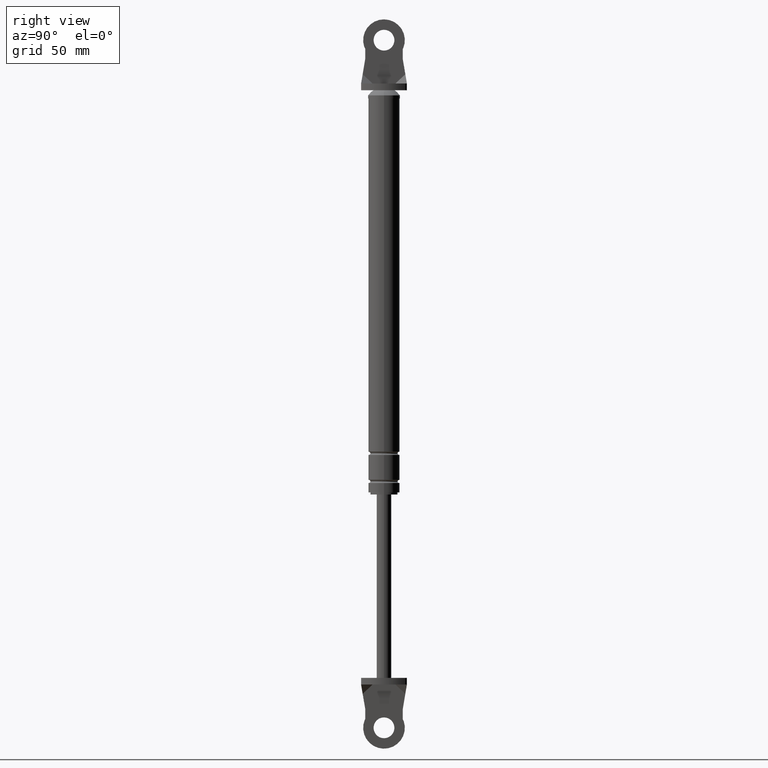
[diagram: clean part render]
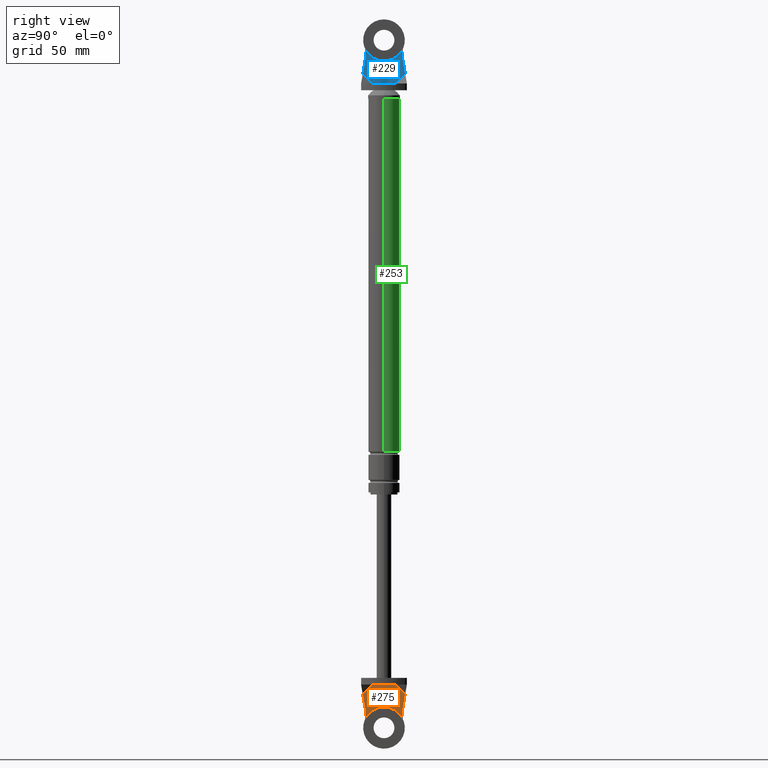
[diagram: same view with three faces highlighted in distinct colors, each labeled with its STEP entity id]
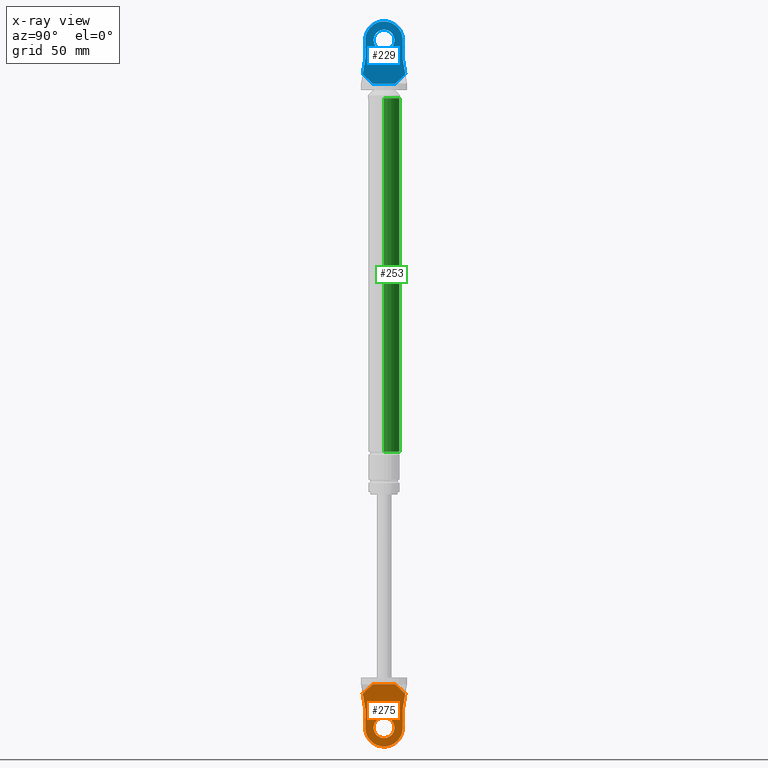
[diagram: x-ray of the same camera — body ghosted, the three highlighted faces saturated]
A machine part, right view with three faces highlighted in distinct colors.
The next image is the same camera in x-ray (body ghosted, the three faces saturated) — at least one of them is partly hidden behind the body in this view.
Their STEP definitions:

[orange] entity #275 — the highlighted planar face has unit normal (1, 0, 0).
#275=ADVANCED_FACE('',(#1008,#1009),#1007,.T.);
#1007=PLANE('',#1553);
#1008=FACE_OUTER_BOUND('',#1554,.T.);
#1009=FACE_BOUND('',#1555,.T.);
#1550=CARTESIAN_POINT('',(3.20000000000E+000,1.22847457627E+001,3.06220000000E+002));
#1551=DIRECTION('',(1.00000000000E+000,0.00000000000E+000,-0.00000000000E+000));
#1552=DIRECTION('',(0.00000000000E+000,0.00000000000E+000,1.00000000000E+000));
#1553=AXIS2_PLACEMENT_3D('',#1550,#1551,#1552);
#1554=EDGE_LOOP('',(#1954,#1955,#1956,#1957,#1958,#1959,#1960,#1961));
#1555=EDGE_LOOP('',(#1962,#1963));
#1954=ORIENTED_EDGE('',*,*,#2188,.F.);
#1955=ORIENTED_EDGE('',*,*,#2148,.F.);
#1956=ORIENTED_EDGE('',*,*,#2189,.F.);
#1957=ORIENTED_EDGE('',*,*,#2152,.T.);
#1958=ORIENTED_EDGE('',*,*,#2186,.T.);
#1959=ORIENTED_EDGE('',*,*,#2184,.F.);
#1960=ORIENTED_EDGE('',*,*,#2182,.T.);
#1961=ORIENTED_EDGE('',*,*,#2180,.T.);
#1962=ORIENTED_EDGE('',*,*,#2190,.T.);
#1963=ORIENTED_EDGE('',*,*,#2191,.T.);
#2148=EDGE_CURVE('',#3210,#3217,#3218,.T.);
#2152=EDGE_CURVE('',#3244,#3237,#3245,.T.);
#2180=EDGE_CURVE('',#3429,#3422,#3430,.T.);
#2182=EDGE_CURVE('',#3442,#3429,#3443,.T.);
#2184=EDGE_CURVE('',#3442,#3455,#3456,.T.);
#2186=EDGE_CURVE('',#3237,#3455,#3468,.T.);
#2188=EDGE_CURVE('',#3217,#3422,#3480,.T.);
#2189=EDGE_CURVE('',#3244,#3210,#3486,.T.);
#2190=EDGE_CURVE('',#3492,#3493,#3494,.T.);
#2191=EDGE_CURVE('',#3493,#3492,#3500,.T.);
#3210=VERTEX_POINT('',#4163);
#3217=VERTEX_POINT('',#4166);
#3218=LINE('',#4167,#4168);
#3237=VERTEX_POINT('',#4176);
#3244=VERTEX_POINT('',#4180);
#3245=LINE('',#4181,#4182);
#3422=VERTEX_POINT('',#4297);
#3429=VERTEX_POINT('',#4300);
#3430=LINE('',#4301,#4302);
#3442=VERTEX_POINT('',#4307);
#3443=LINE('',#4308,#4309);
#3455=VERTEX_POINT('',#4314);
#3456=CIRCLE('',#4318,9.00000000000E+000);
#3468=LINE('',#4322,#4323);
#3480=LINE('',#4328,#4329);
#3486=LINE('',#4331,#4332);
#3492=VERTEX_POINT('',#4334);
#3493=VERTEX_POINT('',#4335);
#3494=CIRCLE('',#4339,5.00000000000E+000);
#3500=CIRCLE('',#4343,5.00000000000E+000);
#4163=CARTESIAN_POINT('',(3.20000000000E+000,5.50000000000E+000,3.09200000000E+002));
#4166=CARTESIAN_POINT('',(3.20000000000E+000,-5.50000000000E+000,3.09200000000E+002));
#4167=CARTESIAN_POINT('',(3.20000000000E+000,5.50000000000E+000,3.09200000000E+002));
#4168=VECTOR('',#4169,1.10000000000E+001);
#4169=DIRECTION('',(0.00000000000E+000,-1.00000000000E+000,0.00000000000E+000));
#4176=CARTESIAN_POINT('',(3.20000000000E+000,9.00000000000E+000,3.21000000000E+002));
#4180=CARTESIAN_POINT('',(3.20000000000E+000,1.02372881356E+001,3.13700000000E+002));
#4181=CARTESIAN_POINT('',(3.20000000000E+000,1.02372881356E+001,3.13700000000E+002));
#4182=VECTOR('',#4183,7.40411250120E+000);
#4183=DIRECTION('',(0.00000000000E+000,-1.67108230108E-001,9.85938557634E-001));
#4297=CARTESIAN_POINT('',(3.20000000000E+000,-1.02372881356E+001,3.13700000000E+002));
#4300=CARTESIAN_POINT('',(3.20000000000E+000,-9.00000000000E+000,3.21000000000E+002));
#4301=CARTESIAN_POINT('',(3.20000000000E+000,-9.00000000000E+000,3.21000000000E+002));
#4302=VECTOR('',#4303,7.40411250120E+000);
#4303=DIRECTION('',(0.00000000000E+000,-1.67108230108E-001,-9.85938557634E-001));
#4307=CARTESIAN_POINT('',(3.20000000000E+000,-9.00000000000E+000,3.30000000000E+002));
#4308=CARTESIAN_POINT('',(3.20000000000E+000,-9.00000000000E+000,3.30000000000E+002));
#4309=VECTOR('',#4310,9.00000000000E+000);
#4310=DIRECTION('',(0.00000000000E+000,0.00000000000E+000,-1.00000000000E+000));
#4314=CARTESIAN_POINT('',(3.20000000000E+000,9.00000000000E+000,3.30000000000E+002));
#4315=CARTESIAN_POINT('',(3.20000000000E+000,3.19744231092E-014,3.30000000000E+002));
#4316=DIRECTION('',(-1.00000000000E+000,-0.00000000000E+000,0.00000000000E+000));
#4317=DIRECTION('',(-0.00000000000E+000,-0.00000000000E+000,-1.00000000000E+000));
#4318=AXIS2_PLACEMENT_3D('',#4315,#4316,#4317);
#4322=CARTESIAN_POINT('',(3.20000000000E+000,9.00000000000E+000,3.21000000000E+002));
#4323=VECTOR('',#4324,9.00000000000E+000);
#4324=DIRECTION('',(0.00000000000E+000,0.00000000000E+000,1.00000000000E+000));
#4328=CARTESIAN_POINT('',(3.20000000000E+000,-5.50000000000E+000,3.09200000000E+002));
#4329=VECTOR('',#4330,6.53390380092E+000);
#4330=DIRECTION('',(0.00000000000E+000,-7.25031815578E-001,6.88715374011E-001));
#4331=CARTESIAN_POINT('',(3.20000000000E+000,1.02372881356E+001,3.13700000000E+002));
#4332=VECTOR('',#4333,6.53390380092E+000);
#4333=DIRECTION('',(0.00000000000E+000,-7.25031815578E-001,-6.88715374011E-001));
#4334=CARTESIAN_POINT('',(3.20000000000E+000,3.19744231092E-014,3.35000000000E+002));
#4335=CARTESIAN_POINT('',(3.20000000000E+000,3.13823041627E-014,3.25000000000E+002));
#4336=CARTESIAN_POINT('',(3.20000000000E+000,3.19744231092E-014,3.30000000000E+002));
#4337=DIRECTION('',(-1.00000000000E+000,0.00000000000E+000,0.00000000000E+000));
#4338=DIRECTION('',(0.00000000000E+000,1.22460635382E-016,1.00000000000E+000));
#4339=AXIS2_PLACEMENT_3D('',#4336,#4337,#4338);
#4340=CARTESIAN_POINT('',(3.20000000000E+000,3.19744231092E-014,3.30000000000E+002));
#4341=DIRECTION('',(-1.00000000000E+000,0.00000000000E+000,0.00000000000E+000));
#4342=DIRECTION('',(0.00000000000E+000,1.22460635382E-016,1.00000000000E+000));
#4343=AXIS2_PLACEMENT_3D('',#4340,#4341,#4342);

[blue] entity #229 — the highlighted planar face has unit normal (1, 0, 0).
#229=ADVANCED_FACE('',(#540,#541),#539,.T.);
#539=PLANE('',#1231);
#540=FACE_OUTER_BOUND('',#1232,.T.);
#541=FACE_BOUND('',#1233,.T.);
#1228=CARTESIAN_POINT('',(3.20000000000E+000,-1.22847457627E+001,2.37800000000E+001));
#1229=DIRECTION('',(1.00000000000E+000,0.00000000000E+000,0.00000000000E+000));
#1230=DIRECTION('',(0.00000000000E+000,0.00000000000E+000,-1.00000000000E+000));
#1231=AXIS2_PLACEMENT_3D('',#1228,#1229,#1230);
#1232=EDGE_LOOP('',(#1731,#1732,#1733,#1734,#1735,#1736,#1737,#1738));
#1233=EDGE_LOOP('',(#1739,#1740));
#1731=ORIENTED_EDGE('',*,*,#2081,.F.);
#1732=ORIENTED_EDGE('',*,*,#2051,.F.);
#1733=ORIENTED_EDGE('',*,*,#2082,.F.);
#1734=ORIENTED_EDGE('',*,*,#2077,.T.);
#1735=ORIENTED_EDGE('',*,*,#2074,.T.);
#1736=ORIENTED_EDGE('',*,*,#2071,.F.);
#1737=ORIENTED_EDGE('',*,*,#2068,.T.);
#1738=ORIENTED_EDGE('',*,*,#2065,.T.);
#1739=ORIENTED_EDGE('',*,*,#2083,.T.);
#1740=ORIENTED_EDGE('',*,*,#2084,.T.);
#2051=EDGE_CURVE('',#2566,#2573,#2574,.T.);
#2065=EDGE_CURVE('',#2665,#2658,#2666,.T.);
#2068=EDGE_CURVE('',#2685,#2665,#2686,.T.);
#2071=EDGE_CURVE('',#2685,#2705,#2706,.T.);
#2074=EDGE_CURVE('',#2725,#2705,#2726,.T.);
#2077=EDGE_CURVE('',#2744,#2725,#2745,.T.);
#2081=EDGE_CURVE('',#2573,#2658,#2769,.T.);
#2082=EDGE_CURVE('',#2744,#2566,#2775,.T.);
#2083=EDGE_CURVE('',#2781,#2782,#2783,.T.);
#2084=EDGE_CURVE('',#2782,#2781,#2789,.T.);
#2566=VERTEX_POINT('',#3760);
#2573=VERTEX_POINT('',#3763);
#2574=LINE('',#3764,#3765);
#2658=VERTEX_POINT('',#3811);
#2665=VERTEX_POINT('',#3814);
#2666=LINE('',#3815,#3816);
#2685=VERTEX_POINT('',#3825);
#2686=LINE('',#3826,#3827);
#2705=VERTEX_POINT('',#3837);
#2706=CIRCLE('',#3841,9.00000000000E+000);
#2725=VERTEX_POINT('',#3849);
#2726=LINE('',#3850,#3851);
#2744=VERTEX_POINT('',#3859);
#2745=LINE('',#3860,#3861);
#2769=LINE('',#3870,#3871);
#2775=LINE('',#3873,#3874);
#2781=VERTEX_POINT('',#3876);
#2782=VERTEX_POINT('',#3877);
#2783=CIRCLE('',#3881,5.00000000000E+000);
#2789=CIRCLE('',#3885,5.00000000000E+000);
#3760=CARTESIAN_POINT('',(3.20000000000E+000,-5.50000000000E+000,2.08000000000E+001));
#3763=CARTESIAN_POINT('',(3.20000000000E+000,5.50000000000E+000,2.08000000000E+001));
#3764=CARTESIAN_POINT('',(3.20000000000E+000,-5.50000000000E+000,2.08000000000E+001));
#3765=VECTOR('',#3766,1.10000000000E+001);
#3766=DIRECTION('',(0.00000000000E+000,1.00000000000E+000,0.00000000000E+000));
#3811=CARTESIAN_POINT('',(3.20000000000E+000,1.02372881356E+001,1.63000000000E+001));
#3814=CARTESIAN_POINT('',(3.20000000000E+000,9.00000000000E+000,9.00000000000E+000));
#3815=CARTESIAN_POINT('',(3.20000000000E+000,9.00000000000E+000,9.00000000000E+000));
#3816=VECTOR('',#3817,7.40411250120E+000);
#3817=DIRECTION('',(0.00000000000E+000,1.67108230108E-001,9.85938557634E-001));
#3825=CARTESIAN_POINT('',(3.20000000000E+000,9.00000000000E+000,-9.98396631623E-015));
#3826=CARTESIAN_POINT('',(3.20000000000E+000,9.00000000000E+000,-9.98396631623E-015));
#3827=VECTOR('',#3828,9.00000000000E+000);
#3828=DIRECTION('',(0.00000000000E+000,0.00000000000E+000,1.00000000000E+000));
#3837=CARTESIAN_POINT('',(3.20000000000E+000,-9.00000000000E+000,1.40239463254E-015));
#3838=CARTESIAN_POINT('',(3.20000000000E+000,3.19744231092E-014,-8.88178419700E-015));
#3839=DIRECTION('',(-1.00000000000E+000,-0.00000000000E+000,-0.00000000000E+000));
#3840=DIRECTION('',(-0.00000000000E+000,-0.00000000000E+000,1.00000000000E+000));
#3841=AXIS2_PLACEMENT_3D('',#3838,#3839,#3840);
#3849=CARTESIAN_POINT('',(3.20000000000E+000,-9.00000000000E+000,9.00000000000E+000));
#3850=CARTESIAN_POINT('',(3.20000000000E+000,-9.00000000000E+000,9.00000000000E+000));
#3851=VECTOR('',#3852,9.00000000000E+000);
#3852=DIRECTION('',(0.00000000000E+000,0.00000000000E+000,-1.00000000000E+000));
#3859=CARTESIAN_POINT('',(3.20000000000E+000,-1.02372881356E+001,1.63000000000E+001));
#3860=CARTESIAN_POINT('',(3.20000000000E+000,-1.02372881356E+001,1.63000000000E+001));
#3861=VECTOR('',#3862,7.40411250120E+000);
#3862=DIRECTION('',(0.00000000000E+000,1.67108230108E-001,-9.85938557634E-001));
#3870=CARTESIAN_POINT('',(3.20000000000E+000,5.50000000000E+000,2.08000000000E+001));
#3871=VECTOR('',#3872,6.53390380092E+000);
#3872=DIRECTION('',(0.00000000000E+000,7.25031815578E-001,-6.88715374011E-001));
#3873=CARTESIAN_POINT('',(3.20000000000E+000,-1.02372881356E+001,1.63000000000E+001));
#3874=VECTOR('',#3875,6.53390380092E+000);
#3875=DIRECTION('',(0.00000000000E+000,7.25031815578E-001,6.88715374011E-001));
#3876=CARTESIAN_POINT('',(3.20000000000E+000,3.19744231092E-014,-5.00000000000E+000));
#3877=CARTESIAN_POINT('',(3.20000000000E+000,3.25665420557E-014,5.00000000000E+000));
#3878=CARTESIAN_POINT('',(3.20000000000E+000,3.19744231092E-014,-8.88178419700E-015));
#3879=DIRECTION('',(-1.00000000000E+000,0.00000000000E+000,-0.00000000000E+000));
#3880=DIRECTION('',(0.00000000000E+000,-1.22460635382E-016,-1.00000000000E+000));
#3881=AXIS2_PLACEMENT_3D('',#3878,#3879,#3880);
#3882=CARTESIAN_POINT('',(3.20000000000E+000,3.19744231092E-014,-8.88178419700E-015));
#3883=DIRECTION('',(-1.00000000000E+000,0.00000000000E+000,-0.00000000000E+000));
#3884=DIRECTION('',(0.00000000000E+000,-1.22460635382E-016,-1.00000000000E+000));
#3885=AXIS2_PLACEMENT_3D('',#3882,#3883,#3884);

[green] entity #253 — the highlighted cylindrical surface (edge-blend (fillet) strip) has radius 7.5 mm, axis along (0, 0, -1).
#253=ADVANCED_FACE('',(#787),#786,.T.);
#786=CYLINDRICAL_SURFACE('',#1400,7.50000000000E+000);
#787=FACE_OUTER_BOUND('',#1401,.T.);
#1397=CARTESIAN_POINT('',(7.00000000000E+000,0.00000000000E+000,1.02800000000E+003));
#1398=DIRECTION('',(-0.00000000000E+000,-0.00000000000E+000,1.00000000000E+000));
#1399=DIRECTION('',(1.00000000000E+000,-0.00000000000E+000,-0.00000000000E+000));
#1400=AXIS2_PLACEMENT_3D('',#1397,#1398,#1399);
#1401=EDGE_LOOP('',(#1840,#1841,#1842,#1843));
#1840=ORIENTED_EDGE('',*,*,#2031,.F.);
#1841=ORIENTED_EDGE('',*,*,#2124,.T.);
#1842=ORIENTED_EDGE('',*,*,#2101,.F.);
#1843=ORIENTED_EDGE('',*,*,#2125,.F.);
#2031=EDGE_CURVE('',#2427,#2426,#2434,.T.);
#2101=EDGE_CURVE('',#2899,#2898,#2906,.T.);
#2124=EDGE_CURVE('',#2427,#2898,#3056,.T.);
#2125=EDGE_CURVE('',#2426,#2899,#3062,.T.);
#2426=VERTEX_POINT('',#3676);
#2427=VERTEX_POINT('',#3677);
#2434=CIRCLE('',#3685,7.50000000000E+000);
#2898=VERTEX_POINT('',#3978);
#2899=VERTEX_POINT('',#3979);
#2906=CIRCLE('',#3987,7.50000000000E+000);
#3056=(BOUNDED_CURVE() B_SPLINE_CURVE(1,(#4076,#4077),.UNSPECIFIED.,.F.,.F.) B_SPLINE_CURVE_WITH_KNOTS((2,2),(5.27704486623E-002,9.47229551296E-001),.UNSPECIFIED.) CURVE() GEOMETRIC_REPRESENTATION_ITEM() RATIONAL_B_SPLINE_CURVE((1.00000000000E+000,1.00000000000E+000)) REPRESENTATION_ITEM('') );
#3062=(BOUNDED_CURVE() B_SPLINE_CURVE(1,(#4078,#4079),.UNSPECIFIED.,.F.,.F.) B_SPLINE_CURVE_WITH_KNOTS((2,2),(5.27704485488E-002,9.47229551451E-001),.UNSPECIFIED.) CURVE() GEOMETRIC_REPRESENTATION_ITEM() RATIONAL_B_SPLINE_CURVE((7.50000000000E-001,7.50000000000E-001)) REPRESENTATION_ITEM('') );
#3676=CARTESIAN_POINT('',(-5.00000000000E-001,0.00000000000E+000,2.80000000000E+001));
#3677=CARTESIAN_POINT('',(1.45000000000E+001,5.92118946467E-016,2.80000000000E+001));
#3682=CARTESIAN_POINT('',(7.00000000000E+000,0.00000000000E+000,2.80000000000E+001));
#3683=DIRECTION('',(-0.00000000000E+000,0.00000000000E+000,-1.00000000000E+000));
#3684=DIRECTION('',(-1.00000000000E+000,-1.22460635382E-016,0.00000000000E+000));
#3685=AXIS2_PLACEMENT_3D('',#3682,#3683,#3684);
#3978=CARTESIAN_POINT('',(1.45000000000E+001,0.00000000000E+000,1.97500000000E+002));
#3979=CARTESIAN_POINT('',(-5.00000000000E-001,5.92118946467E-016,1.97500000000E+002));
#3984=CARTESIAN_POINT('',(7.00000000000E+000,0.00000000000E+000,1.97500000000E+002));
#3985=DIRECTION('',(0.00000000000E+000,0.00000000000E+000,1.00000000000E+000));
#3986=DIRECTION('',(1.00000000000E+000,-1.22460635382E-016,0.00000000000E+000));
#3987=AXIS2_PLACEMENT_3D('',#3984,#3985,#3986);
#4076=CARTESIAN_POINT('',(1.45000000000E+001,0.00000000000E+000,2.80000000215E+001));
#4077=CARTESIAN_POINT('',(1.45000000000E+001,0.00000000000E+000,1.97499999971E+002));
#4078=CARTESIAN_POINT('',(-5.00000000000E-001,-2.96059473233E-016,2.80000000000E+001));
#4079=CARTESIAN_POINT('',(-5.00000000000E-001,-2.96059473233E-016,1.97500000000E+002));